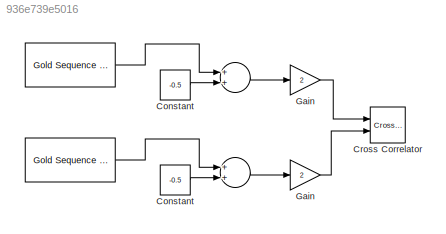
MODEL slx_936e739e5016
KIND model
BLOCK [Reference]     REF=commseqgen2/Gold Sequence
Generator
  Ports = [0, 1]
  SourceBlock = commseqgen2/Gold Sequence\nGenerator
  SourceType = Gold Sequence Generator
  frameBased = off
  genPoly1 = [1 0 0 1 0 1]
  genPoly2 = [1 1 1 1 0 1]
  index = 0
  iniState1 = [1 1 1 0 1]
  iniState2 = [1 0 0 0 1]
  maxOutSize = [10 1]
  maxOutSizeMode = Dialog parameter
  outDataType = double
  outVarSiz = off
  reset = off
  sampPerFrame = 1
  shift = 0
  ts = 1e-3
BLOCK [Sum]     
  InputSameDT = off
  OutDataTypeStr = Inherit: Inherit via internal rule
  Ports = [2, 1]
  SaturateOnIntegerOverflow = off
BLOCK [Reference]        REF=commseqgen2/Gold Sequence
Generator
  Ports = [0, 1]
  SourceBlock = commseqgen2/Gold Sequence\nGenerator
  SourceType = Gold Sequence Generator
  frameBased = off
  genPoly1 = [1 0 0 1 0 1]
  genPoly2 = [1 1 1 1 0 1]
  index = 0
  iniState1 = [1 0 1 0 1]
  iniState2 = [1 1 1 0 0]
  maxOutSize = [10 1]
  maxOutSizeMode = Dialog parameter
  outDataType = double
  outVarSiz = off
  reset = off
  sampPerFrame = 1
  shift = 0
  ts = 1e-3
BLOCK [Sum]        
  InputSameDT = off
  OutDataTypeStr = Inherit: Inherit via internal rule
  Ports = [2, 1]
  SaturateOnIntegerOverflow = off
BLOCK [Constant]  Constant 
  Value = -0.5
BLOCK [Gain]  Gain 
  Gain = 2
  OutDataTypeStr = Inherit: Inherit via internal rule
  ParamDataTypeStr = Inherit: Inherit via internal rule
  SaturateOnIntegerOverflow = off
BLOCK [Constant] Constant
  Value = -0.5
BLOCK [Reference] Cross Correlator  REF=simulink_extras/Additional
Sinks/Cross
Correlator
  HowOften = 128
  Ports = [2]
  SourceBlock = simulink_extras/Additional\nSinks/Cross\nCorrelator
  SourceType = Cross Correlator
  npts = 128
  sampleT = 1e-3
BLOCK [Gain] Gain
  Gain = 2
  OutDataTypeStr = Inherit: Inherit via internal rule
  ParamDataTypeStr = Inherit: Inherit via internal rule
  SaturateOnIntegerOverflow = off
LINE        :1 ->  Gain :1
LINE      :1 ->        :1
LINE     :1 -> Gain:1
LINE   :1 ->     :1
LINE  Constant :1 ->        :2
LINE  Gain :1 -> Cross Correlator:2
LINE Constant:1 ->     :2
LINE Gain:1 -> Cross Correlator:1
